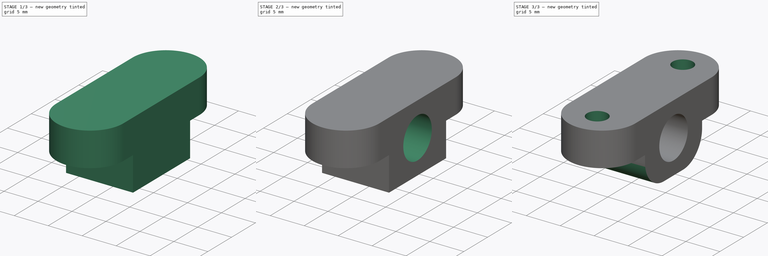
[diagram: build sequence overview — one tinted view per stage of 3, left to right]
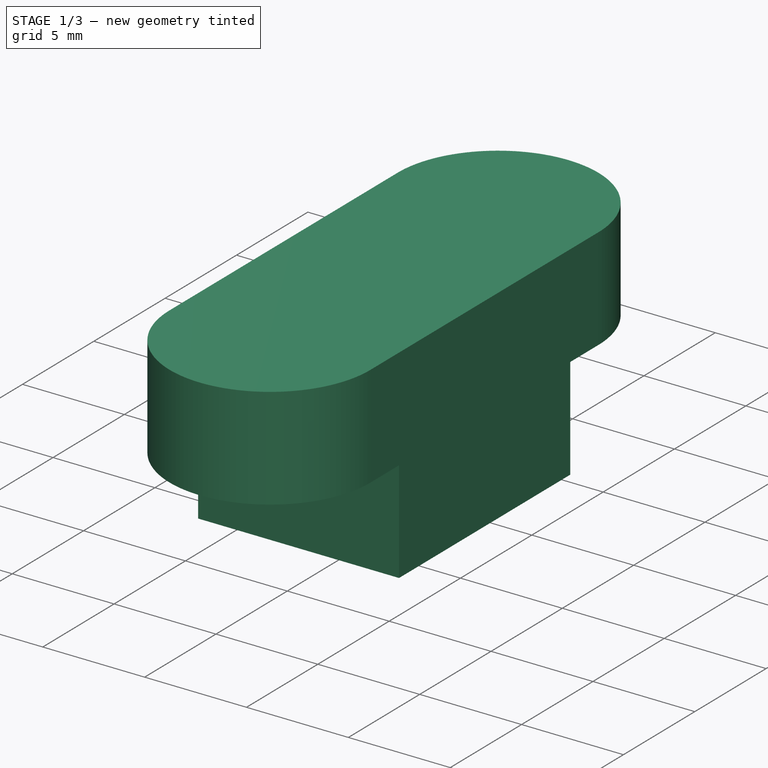
[diagram: stage 1 of 3 — iso view after this stage's code; geometry added in this stage tinted green]
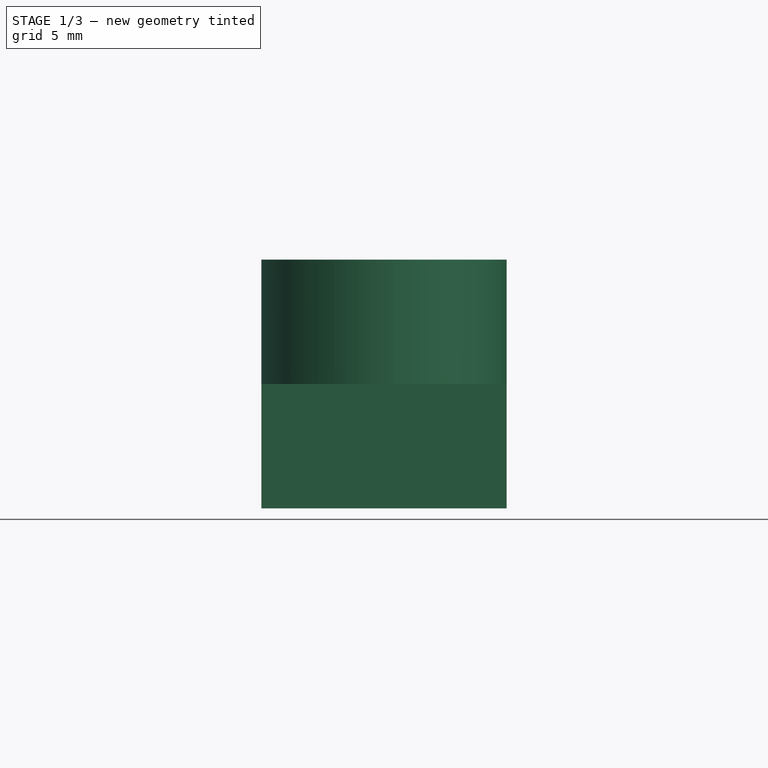
[diagram: stage 1 of 3 — front view after this stage's code; geometry added in this stage tinted green]
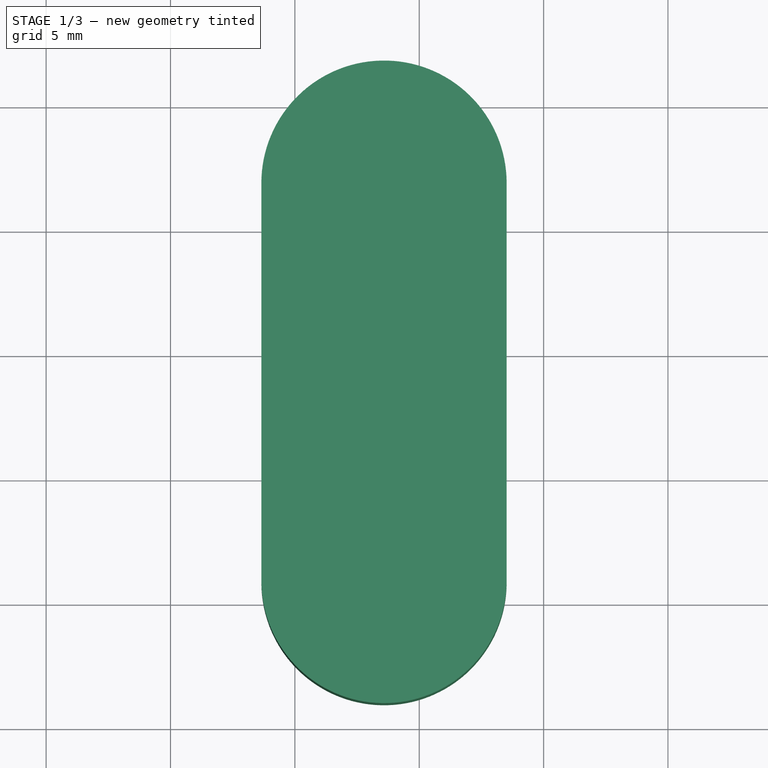
[diagram: stage 1 of 3 — top view after this stage's code; geometry added in this stage tinted green]
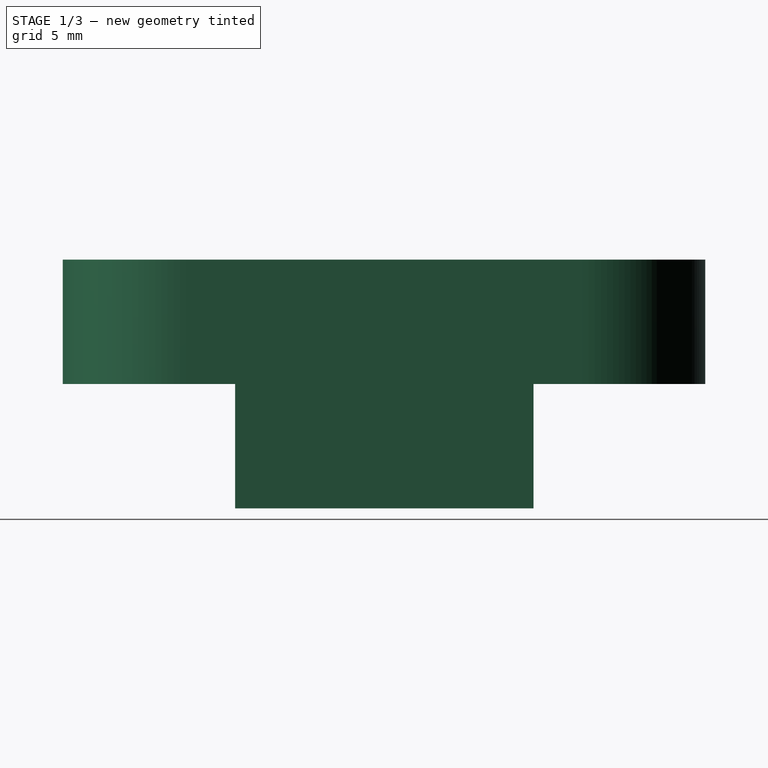
[diagram: stage 1 of 3 — right view after this stage's code; geometry added in this stage tinted green]
FCSTD DOCUMENT  (FreeCAD 1.0R38641 +468 (Git))
Label: end_switch_compensator
License: All rights reserved
LicenseURL: https://en.wikipedia.org/wiki/All_rights_reserved
objects: Sketcher::SketchObject×4, PartDesign::Pad×2, PartDesign::Pocket×2, PartDesign::Fillet×1, PartDesign::Body×1
note: 24 computed .brp shape members not serialized (recipe doc carries the construction recipe); baked Part::Feature solids carry a one-line shape summary decoded from their .brp

FEATURE [Sketcher::SketchObject] Sketch
  ArcFitTolerance = 1e-06
  FullyConstrained = false
  MakeInternals = false
  sketch-geometry (8):
    g0: LineSegment [constr] StartX=148.515 StartY=91.7915 StartZ=0 EndX=138.652 EndY=91.7915 EndZ=0
    g1: LineSegment StartX=138.652 StartY=91.7915 StartZ=0 EndX=138.652 EndY=75.7903 EndZ=0
    g2: LineSegment [constr] StartX=138.652 StartY=75.7903 StartZ=0 EndX=148.515 EndY=75.8408 EndZ=0
    g3: LineSegment StartX=148.515 StartY=91.7915 StartZ=0 EndX=148.515 EndY=75.8408 EndZ=0
    g4: GeomPoint X=148.515 Y=83.8161 Z=0
    g5: LineSegment [constr] StartX=208.544 StartY=83.9698 StartZ=0 EndX=138.652 EndY=83.7909 EndZ=0
    g6: ArcOfCircle CenterX=143.584 CenterY=91.7915 CenterZ=0 NormalX=0 NormalY=0 NormalZ=1 AngleXU=0 Radius=4.93125 StartAngle=1.1e-14 EndAngle=3.14159
    g7: ArcOfCircle CenterX=143.584 CenterY=75.8155 CenterZ=0 NormalX=0 NormalY=0 NormalZ=1 AngleXU=0 Radius=4.93132 StartAngle=3.14671 EndAngle=6.28831
  constraints (16):
    c: Coincident(g0,g1)
    c: Vertical(g1)
    c: Coincident(g1,g2)
    c: Coincident(g0,g3)
    c: Coincident(g3,g2)
    c: Vertical(g3)
    c: PointOnObject(g4,g5)
    c: Symmetric(g2,g0,g4)
    c: Symmetric(g0,g1,g5)
    c: Horizontal(g0)
    c: Symmetric(g0,g0,g6)
    c: Coincident(g6,g0)
    c: Coincident(g6,g0)
    c: PointOnObject(g7,g2)
    c: Coincident(g7,g2)
    c: Coincident(g7,g1)
FEATURE [PartDesign::Pad] Pad
  Direction = (0,0,1)
  Length = 5
  Length2 = 10
  Profile = -> Sketch
  ReferenceAxis = -> Sketch [N_Axis]
  Refine = true
  Suppressed = false
  Type = 0
FEATURE [Sketcher::SketchObject] Sketch001
  ArcFitTolerance = 1e-06
  ExternalGeometry = -> [Sketch]
  FullyConstrained = true
  MakeInternals = false
  MapMode = 5
  Placement = pos=(0,0,5) rot=(0,0,1;0rad)
  sketch-geometry (5):
    g0: LineSegment StartX=138.652 StartY=77.8161 StartZ=0 EndX=148.515 EndY=77.8161 EndZ=0
    g1: LineSegment StartX=148.515 StartY=77.8161 StartZ=0 EndX=148.515 EndY=89.8161 EndZ=0
    g2: LineSegment StartX=148.515 StartY=89.8161 StartZ=0 EndX=138.652 EndY=89.8161 EndZ=0
    g3: LineSegment StartX=138.652 StartY=89.8161 StartZ=0 EndX=138.652 EndY=77.8161 EndZ=0
    g4: GeomPoint [constr] X=143.584 Y=83.8161 Z=0
  constraints (12):
    c: Coincident(g0,g1)
    c: Coincident(g1,g2)
    c: Coincident(g2,g3)
    c: Coincident(g3,g0)
    c: Horizontal(g0)
    c: Horizontal(g2)
    c: Vertical(g1)
    c: Vertical(g3)
    c: Symmetric(g2,g0,g4)
    c: PointOnObject(g1,g-3)
    c: Symmetric(g-3,g-4,g4)
    c: DistanceY(g1,g1) = 12
FEATURE [PartDesign::Pad] Pad001
  BaseFeature = -> Pad
  Direction = (0,0,1)
  Length = 10
  Length2 = 10
  Profile = -> Sketch001
  ReferenceAxis = -> Sketch001 [N_Axis]
  Refine = true
  Reversed = true
  Suppressed = false
  Type = 0
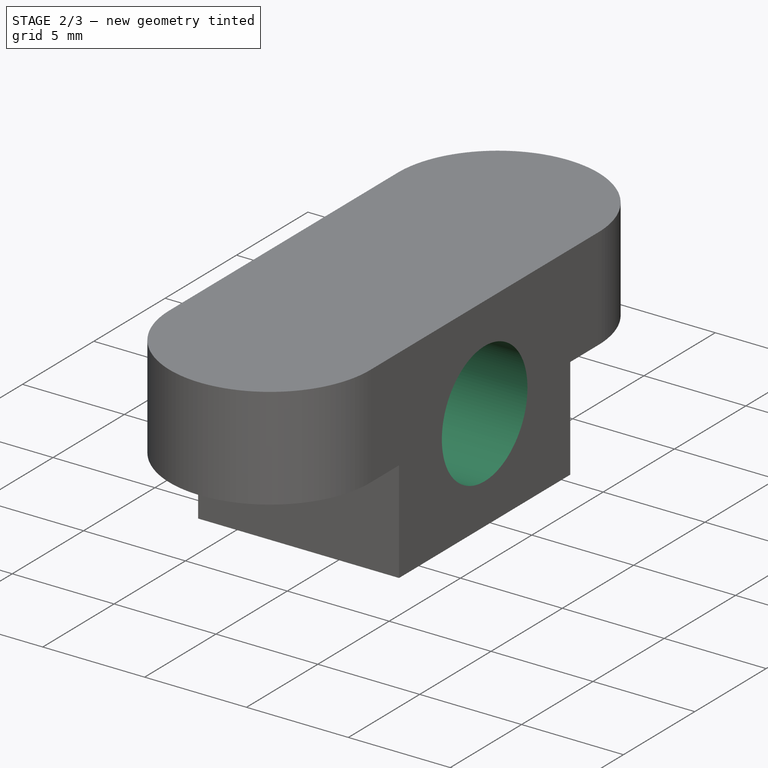
[diagram: stage 2 of 3 — iso view after this stage's code; geometry added in this stage tinted green]
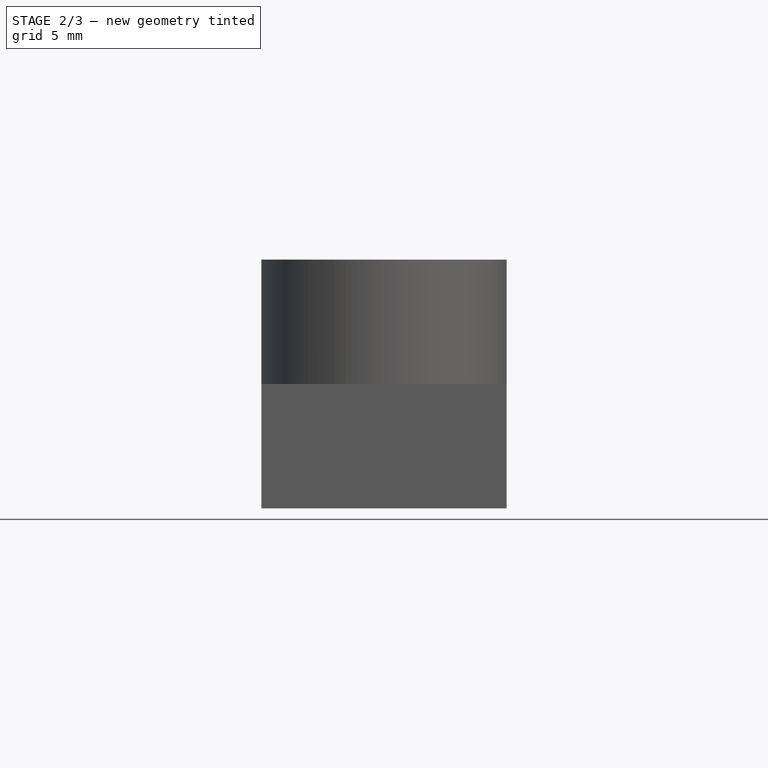
[diagram: stage 2 of 3 — front view after this stage's code; geometry added in this stage tinted green]
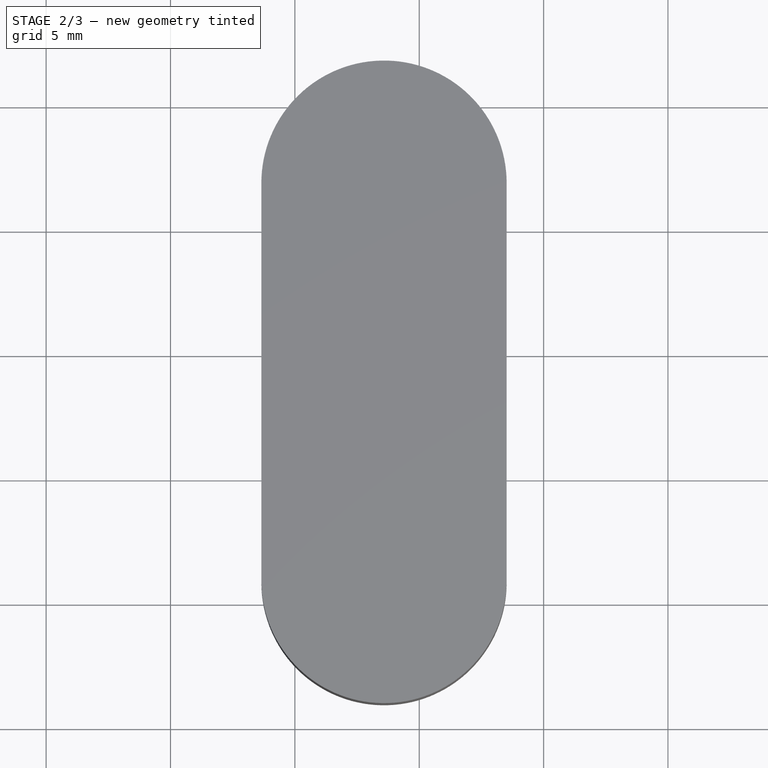
[diagram: stage 2 of 3 — top view after this stage's code; geometry added in this stage tinted green]
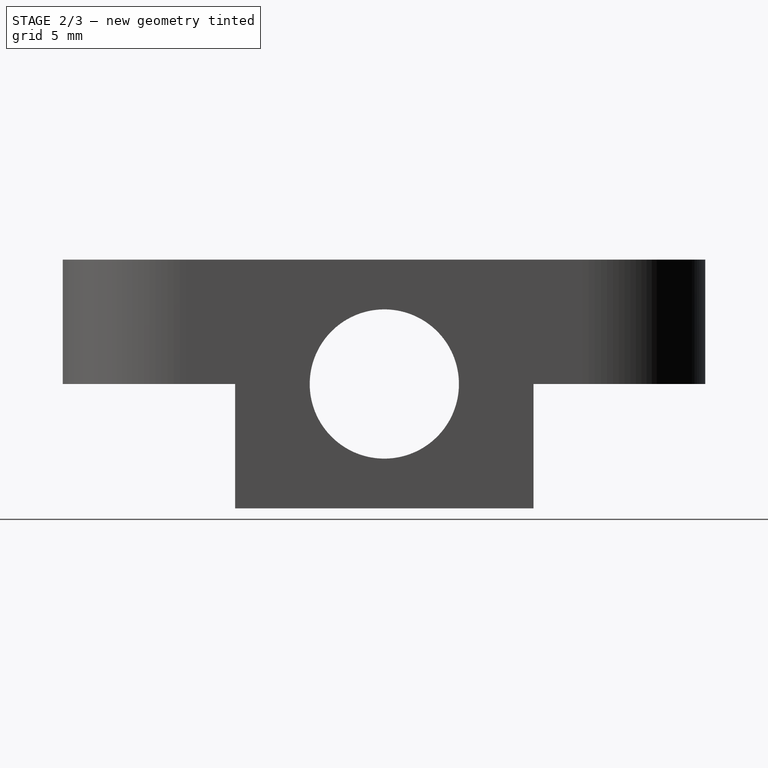
[diagram: stage 2 of 3 — right view after this stage's code; geometry added in this stage tinted green]
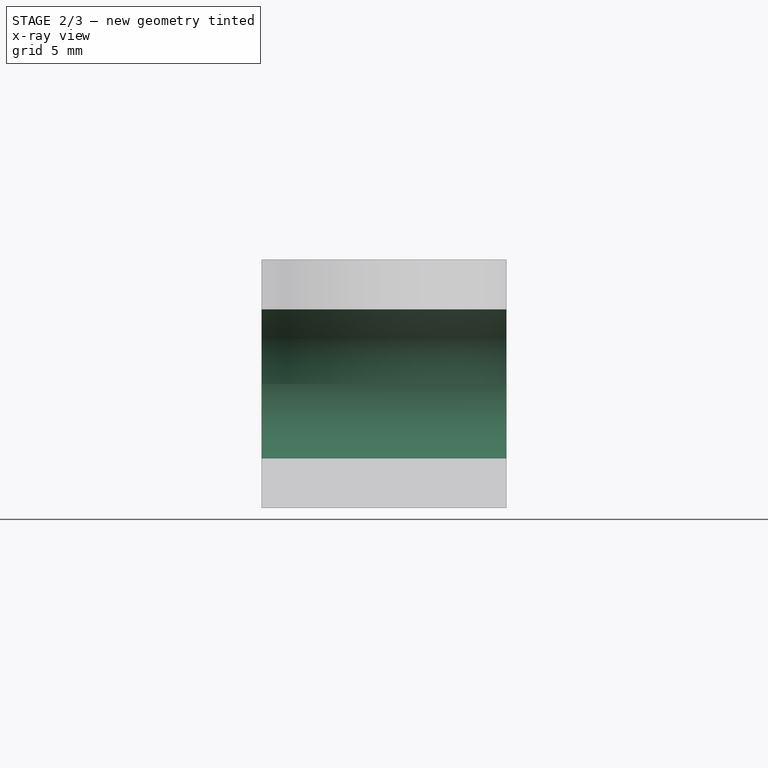
[diagram: stage 2 of 3 — x-ray composite at the front view; earlier geometry ghosted, this stage's added geometry solid]
FEATURE [Sketcher::SketchObject] Sketch002
  ArcFitTolerance = 1e-06
  AttachmentSupport = -> [Pad001]
  ExternalGeometry = -> [Pad001]
  FullyConstrained = true
  MakeInternals = false
  MapMode = 5
  Placement = pos=(138.652,1.385e-13,6.936e-13) rot=(0.57735,-0.57735,-0.57735;2.0944rad)
  sketch-geometry (2):
    g0: Circle CenterX=-83.8161 CenterY=-6.781e-13 CenterZ=0 NormalX=0 NormalY=0 NormalZ=1 AngleXU=0 Radius=3
    g1: LineSegment [constr] StartX=-89.8161 StartY=-5 StartZ=0 EndX=-89.8161 EndY=5 EndZ=0
  constraints (5):
    c: Diameter(g0) = 6
    c: Coincident(g1,g-3)
    c: PointOnObject(g1,g-4)
    c: Vertical(g1)
    c: Symmetric(g-3,g1,g0)
FEATURE [PartDesign::Pocket] Pocket
  BaseFeature = -> Pad001
  Direction = (1,-1e-16,5e-15)
  Length = 5
  Length2 = 5
  Profile = -> Sketch002
  ReferenceAxis = -> Sketch002 [N_Axis]
  Refine = true
  Suppressed = false
  Type = 1
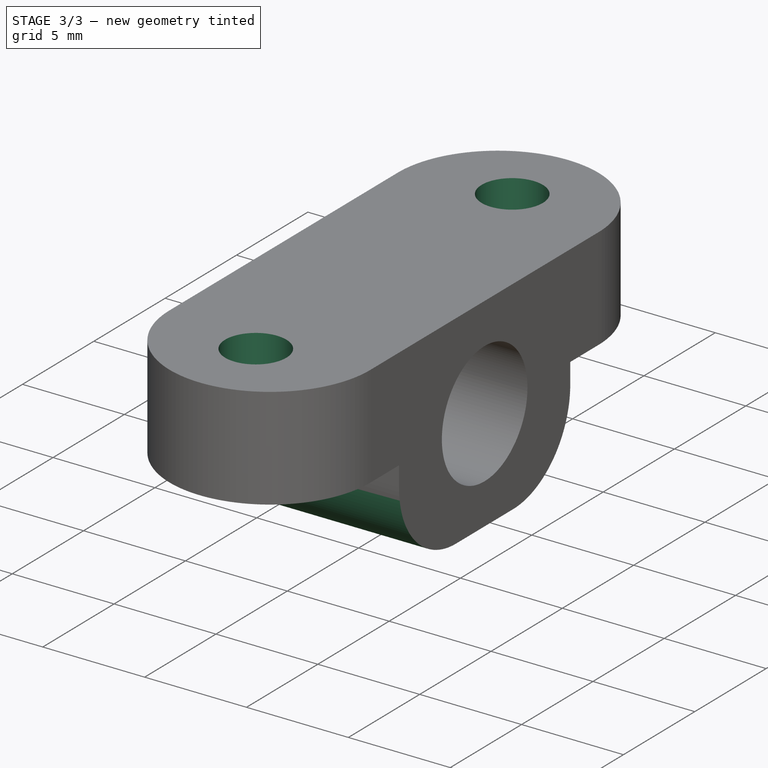
[diagram: stage 3 of 3 — iso view after this stage's code; geometry added in this stage tinted green]
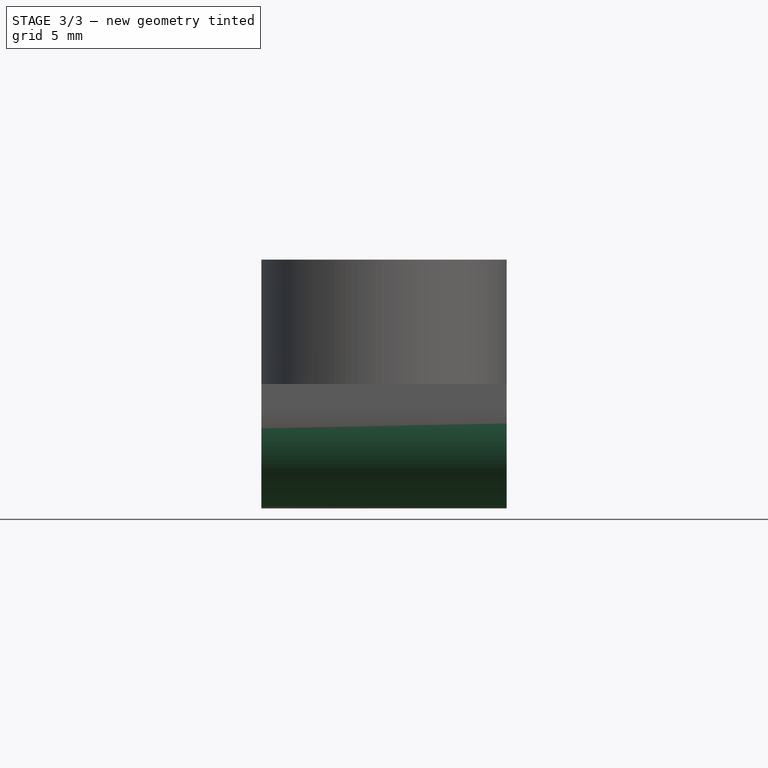
[diagram: stage 3 of 3 — front view after this stage's code; geometry added in this stage tinted green]
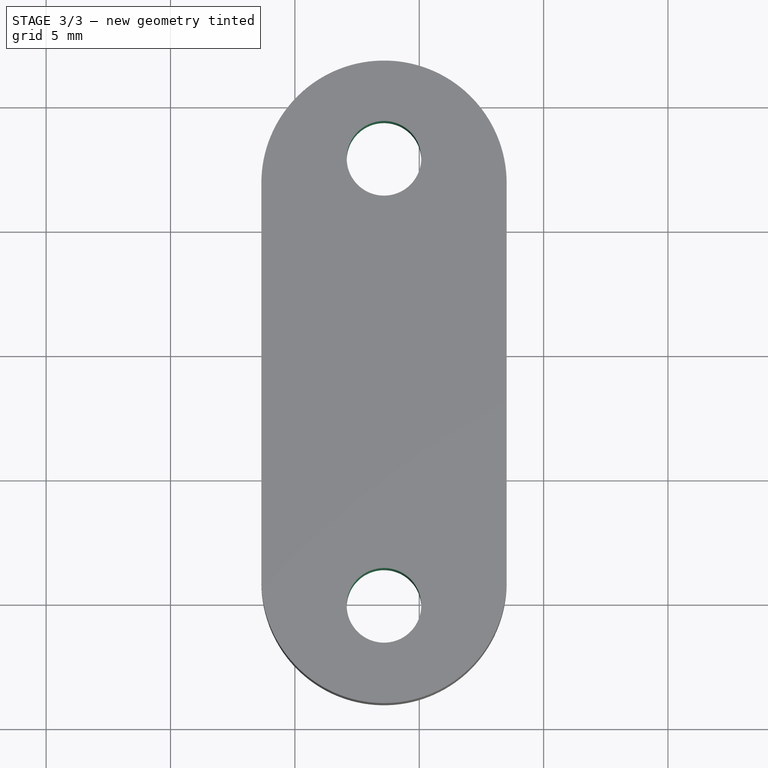
[diagram: stage 3 of 3 — top view after this stage's code; geometry added in this stage tinted green]
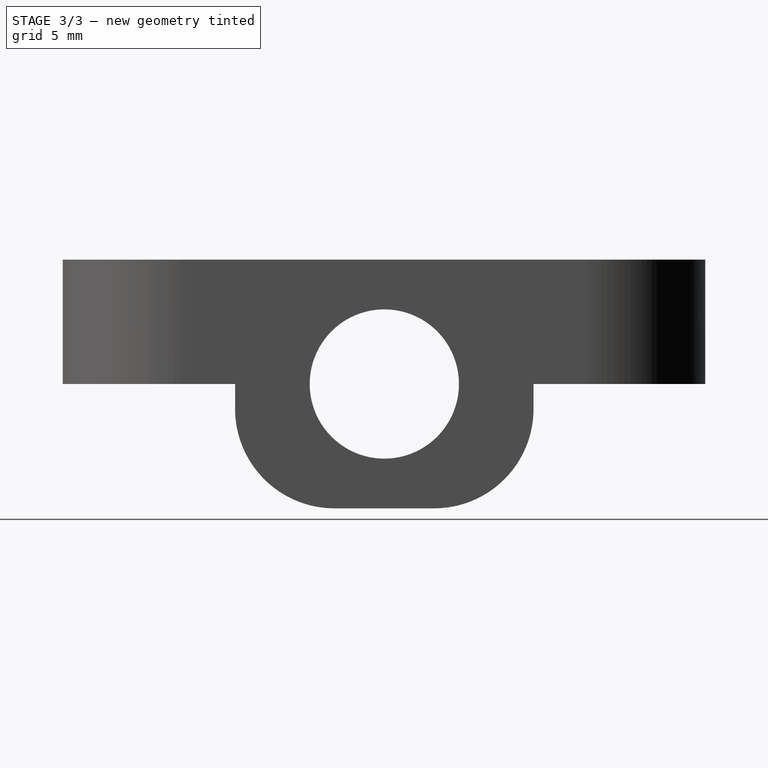
[diagram: stage 3 of 3 — right view after this stage's code; geometry added in this stage tinted green]
FEATURE [Sketcher::SketchObject] Sketch003
  ArcFitTolerance = 1e-06
  AttachmentSupport = -> [Pocket]
  ExternalGeometry = -> [Pocket]
  FullyConstrained = true
  MakeInternals = false
  MapMode = 5
  Placement = pos=(0,0,0) rot=(1,0,0;3.14159rad)
  sketch-geometry (3):
    g0: Circle CenterX=143.584 CenterY=-74.8155 CenterZ=0 NormalX=0 NormalY=0 NormalZ=1 AngleXU=0 Radius=1.5
    g1: Circle CenterX=143.584 CenterY=-92.7915 CenterZ=0 NormalX=0 NormalY=0 NormalZ=1 AngleXU=0 Radius=1.5
    g2: LineSegment [constr] StartX=143.584 StartY=-92.7915 StartZ=0 EndX=143.584 EndY=-74.8155 EndZ=0
  constraints (8):
    c: Coincident(g2,g1)
    c: Coincident(g2,g0)
    c: Vertical(g2)
    c: PointOnObject(g-3,g2)
    c: Distance(g1,g-4) = 1
    c: DistanceY(g-3,g0) = 1
    c: Equal(g1,g0)
    c: Diameter(g0) = 3
FEATURE [PartDesign::Pocket] Pocket001
  BaseFeature = -> Pocket
  Direction = (0,0,1)
  Length = 5
  Length2 = 5
  Profile = -> Sketch003
  ReferenceAxis = -> Sketch003 [N_Axis]
  Refine = true
  Suppressed = false
  Type = 0
FEATURE [PartDesign::Fillet] Fillet
  Base = -> Pocket001 [Edge26,Edge27]
  BaseFeature = -> Pocket001
  Radius = 4
  Refine = true
  SupportTransform = false
  Suppressed = false
  UseAllEdges = false
FEATURE [PartDesign::Body] Body
  AllowCompound = false
  Group = -> [Sketch,Pad,Sketch001,Pad001,Sketch002,Pocket,Sketch003,Pocket001,Fillet]
  Origin = -> Origin
  Tip = -> Fillet
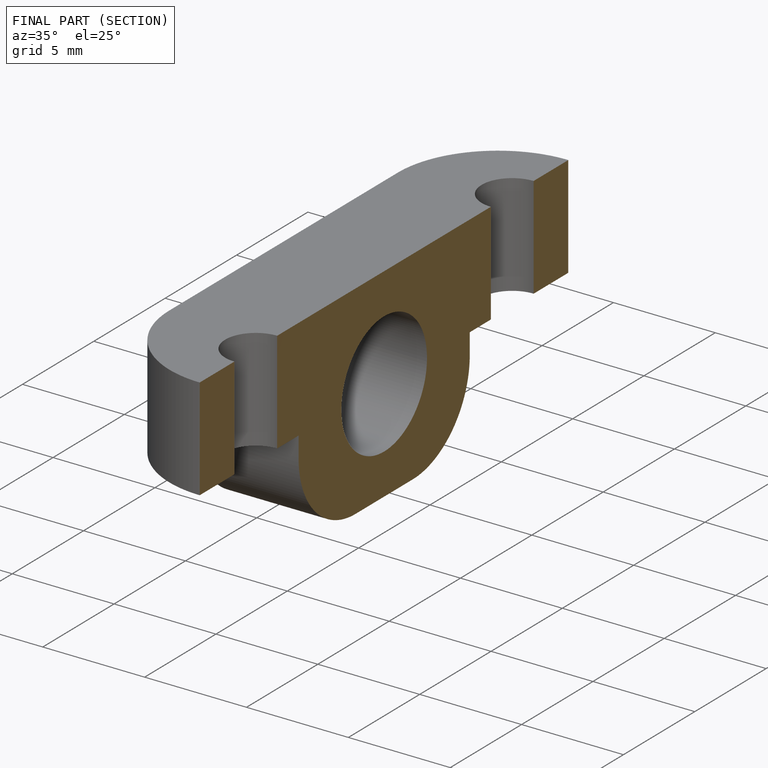
[diagram: finished part — half-section view (interior)]
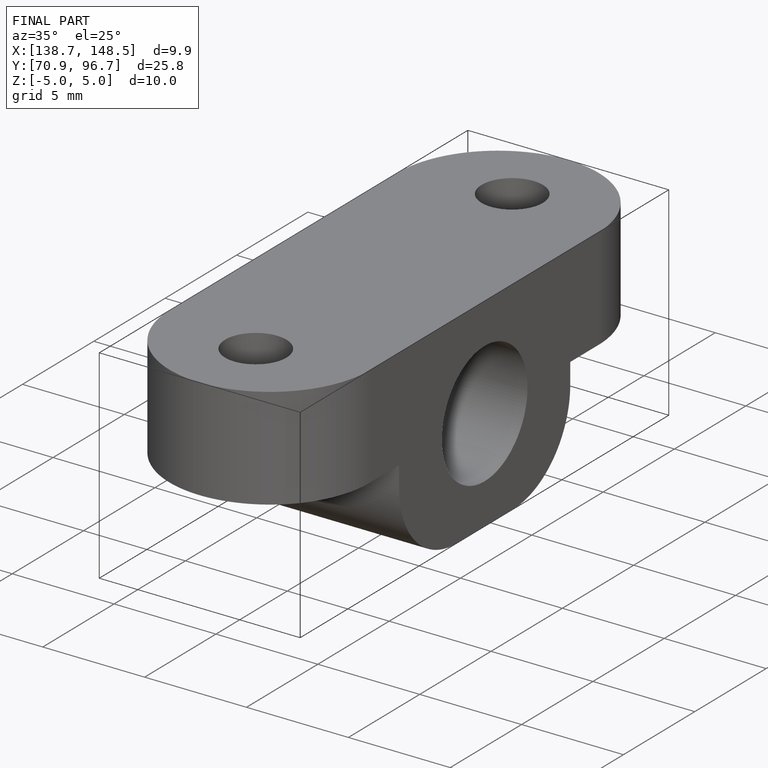
[diagram: finished part — iso view with bounding-box wireframe]
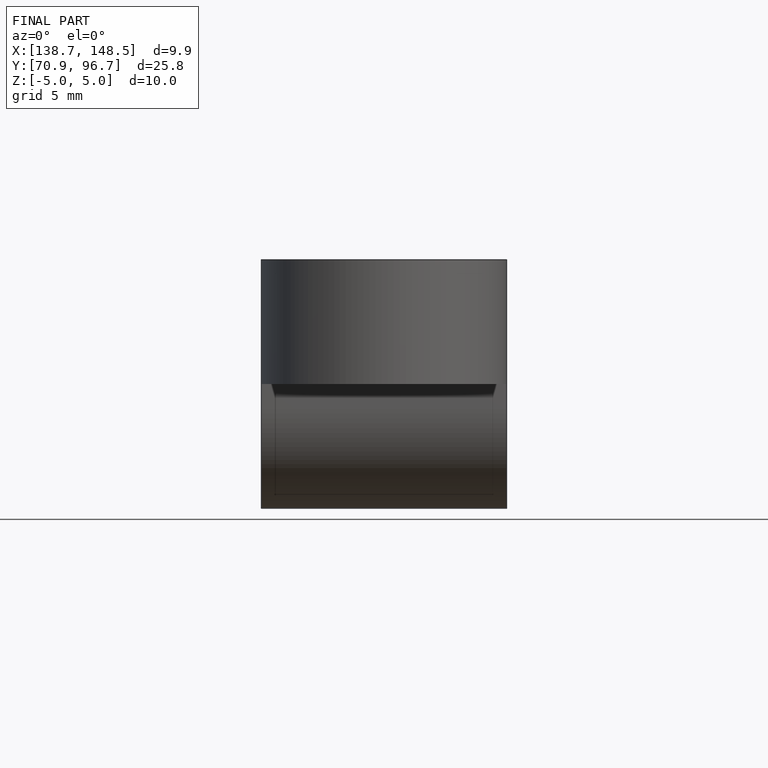
[diagram: finished part — front view with bounding-box wireframe]
